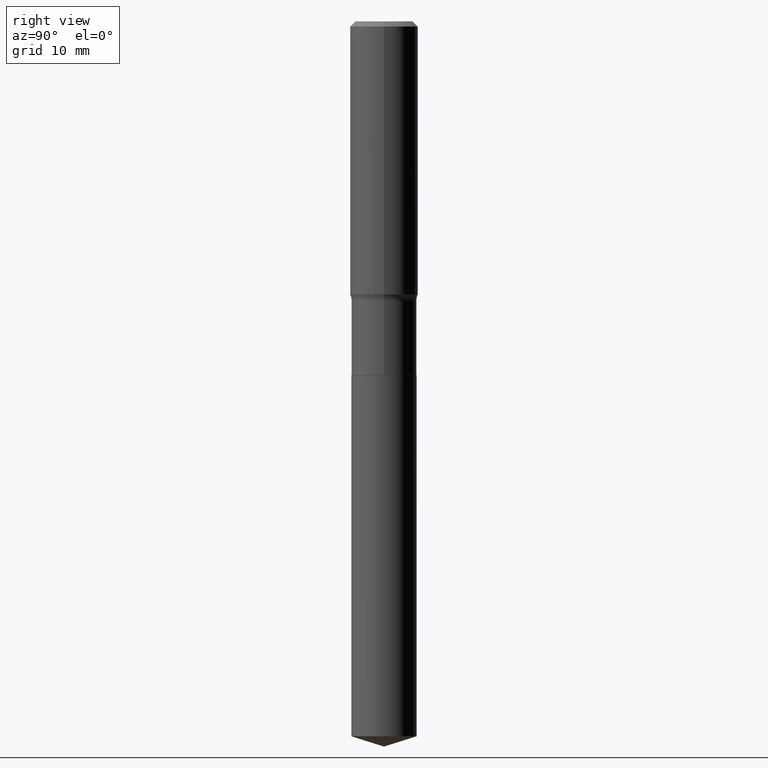
[diagram: clean part render]
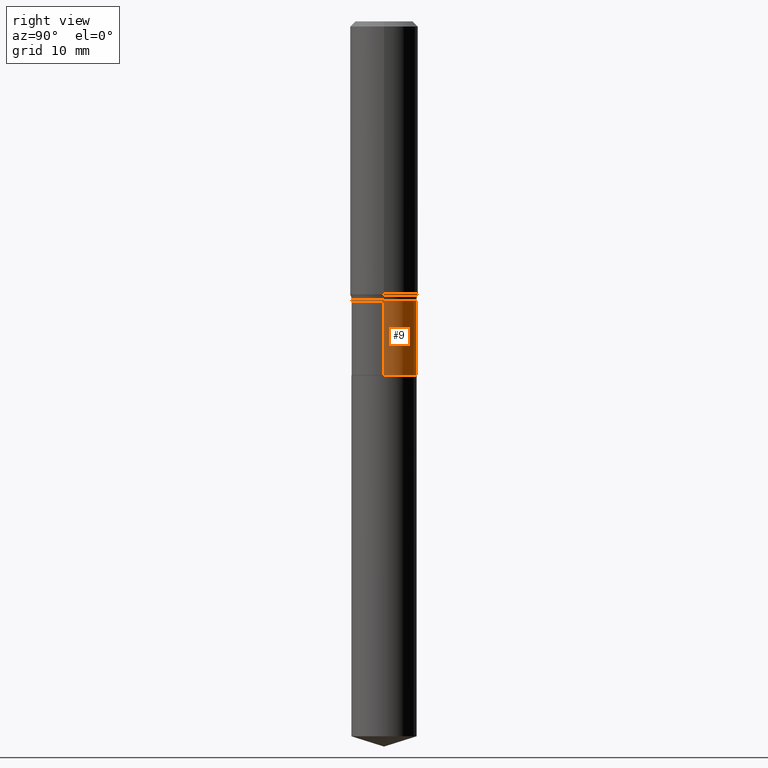
[diagram: same view with one face highlighted and labeled with its STEP entity id]
A machine part, right view. The second image highlights one B-rep face of the part: STEP entity #9.
In plain terms, the highlighted cylindrical surface (edge-blend (fillet) strip) has radius 4.5644 mm, axis along (-0, 0, 1).
Its self-contained STEP definition (entity closure, byte-faithful):
#1 = CIRCLE ( 'NONE', #19, 0.1796999999999999709 ) ;
#9 = ADVANCED_FACE ( 'NONE', ( #406 ), #220, .T. ) ;
#15 = CARTESIAN_POINT ( 'NONE',  ( 0.1796999999999999709, -6.631370506864782203E-15, -1.539899999999999824 ) ) ;
#19 = AXIS2_PLACEMENT_3D ( 'NONE', #162, #433, #242 ) ;
#35 = CARTESIAN_POINT ( 'NONE',  ( 0.000000000000000000, 0.000000000000000000, 0.000000000000000000 ) ) ;
#41 = DIRECTION ( 'NONE',  ( 1.000000000000000000, -6.982962677686267499E-15, 0.000000000000000000 ) ) ;
#63 = VERTEX_POINT ( 'NONE', #15 ) ;
#86 = CARTESIAN_POINT ( 'NONE',  ( -0.1796999999999999709, -4.820328565860884929E-15, -1.539899999999999824 ) ) ;
#94 = CARTESIAN_POINT ( 'NONE',  ( -0.1796999999999999986, -4.820328565860884929E-15, -1.952699999999999880 ) ) ;
#103 = VECTOR ( 'NONE', #293, 39.37007874015748143 ) ;
#105 = EDGE_CURVE ( 'NONE', #454, #63, #153, .T. ) ;
#153 = LINE ( 'NONE', #232, #103 ) ;
#161 = AXIS2_PLACEMENT_3D ( 'NONE', #266, #382, #41 ) ;
#162 = CARTESIAN_POINT ( 'NONE',  ( 3.765777414644491171E-29, -5.376532113684559684E-15, -1.539899999999999824 ) ) ;
#174 = DIRECTION ( 'NONE',  ( 1.000000000000000000, -6.982962677686265922E-15, 4.876176775795935232E-29 ) ) ;
#176 = EDGE_CURVE ( 'NONE', #446, #368, #257, .T. ) ;
#180 = ORIENTED_EDGE ( 'NONE', *, *, #211, .T. ) ;
#183 = DIRECTION ( 'NONE',  ( -2.445468806185136597E-29, 3.491481338843145583E-15, 1.000000000000000000 ) ) ;
#196 = ORIENTED_EDGE ( 'NONE', *, *, #230, .F. ) ;
#211 = EDGE_CURVE ( 'NONE', #454, #446, #329, .T. ) ;
#220 = CYLINDRICAL_SURFACE ( 'NONE', #299, 0.1796999999999999986 ) ;
#229 = DIRECTION ( 'NONE',  ( -2.445468806185136877E-29, 3.491481338843145188E-15, 1.000000000000000000 ) ) ;
#230 = EDGE_CURVE ( 'NONE', #63, #368, #1, .T. ) ;
#232 = CARTESIAN_POINT ( 'NONE',  ( 0.1796999999999999986, -1.254838393180221928E-15, 8.762489666105295644E-30 ) ) ;
#242 = DIRECTION ( 'NONE',  ( 1.000000000000000000, -6.982962677686269077E-15, 0.000000000000000000 ) ) ;
#257 = LINE ( 'NONE', #410, #345 ) ;
#266 = CARTESIAN_POINT ( 'NONE',  ( 4.775266937837715922E-29, -6.817815610359009828E-15, -1.952699999999999880 ) ) ;
#293 = DIRECTION ( 'NONE',  ( -2.445468806185136877E-29, 3.491481338843145188E-15, 1.000000000000000000 ) ) ;
#299 = AXIS2_PLACEMENT_3D ( 'NONE', #35, #183, #174 ) ;
#329 = CIRCLE ( 'NONE', #161, 0.1796999999999999986 ) ;
#338 = EDGE_LOOP ( 'NONE', ( #180, #370, #196, #409 ) ) ;
#345 = VECTOR ( 'NONE', #229, 39.37007874015748143 ) ;
#368 = VERTEX_POINT ( 'NONE', #86 ) ;
#370 = ORIENTED_EDGE ( 'NONE', *, *, #176, .T. ) ;
#382 = DIRECTION ( 'NONE',  ( -2.445468806185136597E-29, 3.491481338843145583E-15, 1.000000000000000000 ) ) ;
#392 = CARTESIAN_POINT ( 'NONE',  ( 0.1796999999999999986, -8.072654003539231558E-15, -1.952699999999999880 ) ) ;
#406 = FACE_OUTER_BOUND ( 'NONE', #338, .T. ) ;
#409 = ORIENTED_EDGE ( 'NONE', *, *, #105, .F. ) ;
#410 = CARTESIAN_POINT ( 'NONE',  ( -0.1796999999999999986, 1.276845296160900024E-15, -8.839326357188065585E-30 ) ) ;
#433 = DIRECTION ( 'NONE',  ( -2.445468806185136597E-29, 3.491481338843145583E-15, 1.000000000000000000 ) ) ;
#446 = VERTEX_POINT ( 'NONE', #94 ) ;
#454 = VERTEX_POINT ( 'NONE', #392 ) ;